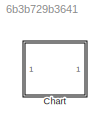
MODEL slx_6b3b729b3641
KIND model
CONFIG AbsTol = auto
CONFIG EnableMultiTasking = off
CONFIG FixedStep = 1
CONFIG MaxStep = auto
CONFIG MinStep = auto
CONFIG RelTol = 1e-3
CONFIG SampleTimeConstraint = Unconstrained
CONFIG Solver = FixedStepDiscrete
CONFIG SolverName = FixedStepDiscrete
CONFIG StartTime = 0.0
CONFIG StopTime = 10.0
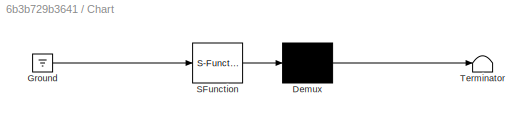
BLOCK [SubSystem] Chart
  BlockKeywords = __PRM__SERIALIZED__DATA__:Stateflow Chart,Stateflow Diagram
  ErrorFcn = Stateflow.Translate.translate
  PermitHierarchicalResolution = ExplicitOnly
  Ports = []
  RequestExecContextInheritance = off
  SFBlockType = Chart
  TreatAsAtomicUnit = on
BLOCK [Demux] Chart/ Demux 
  Outputs = 1
  Ports = [1, 1]
BLOCK [Ground] Chart/ Ground 
BLOCK [S-Function] Chart/ SFunction 
  EnableBusSupport = off
  FunctionName = sf_sfun
  PortCounts = [1 1]
  Ports = [1, 1]
  SFcnIsStateOwnerBlock = off
  SFunctionDeploymentMode = off
  Tag = Stateflow S-Function Hyped_sm 3
BLOCK [Terminator] Chart/ Terminator 
CHART Chart states=10 transitions=19
  STATE_LABEL 'EmergencyBraking'
  STATE_LABEL 'FailureStopped'
  STATE_LABEL 'NominalBraking'
  STATE_LABEL 'RunComplete'
  STATE_LABEL 'Idle'
  STATE_LABEL 'Calibrating'
  STATE_LABEL 'Ready'
  STATE_LABEL 'Accelerating'
  STATE_LABEL 'Exiting'
  STATE_LABEL 'Finished'
